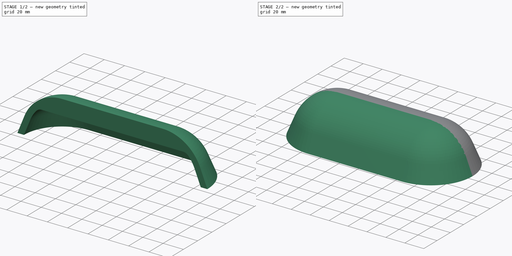
[diagram: build sequence overview — one tinted view per stage of 2, left to right]
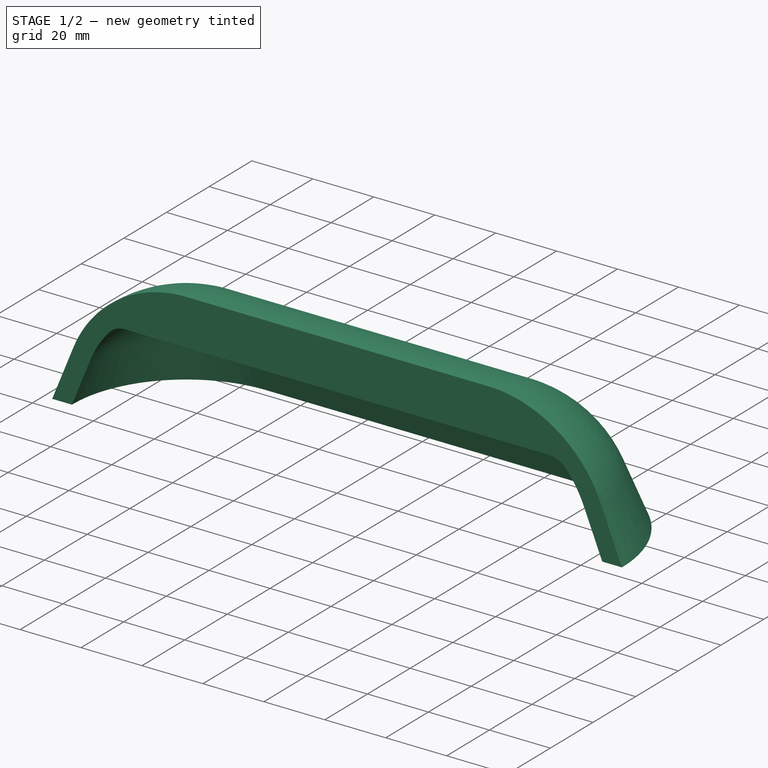
[diagram: stage 1 of 2 — iso view after this stage's code; geometry added in this stage tinted green]
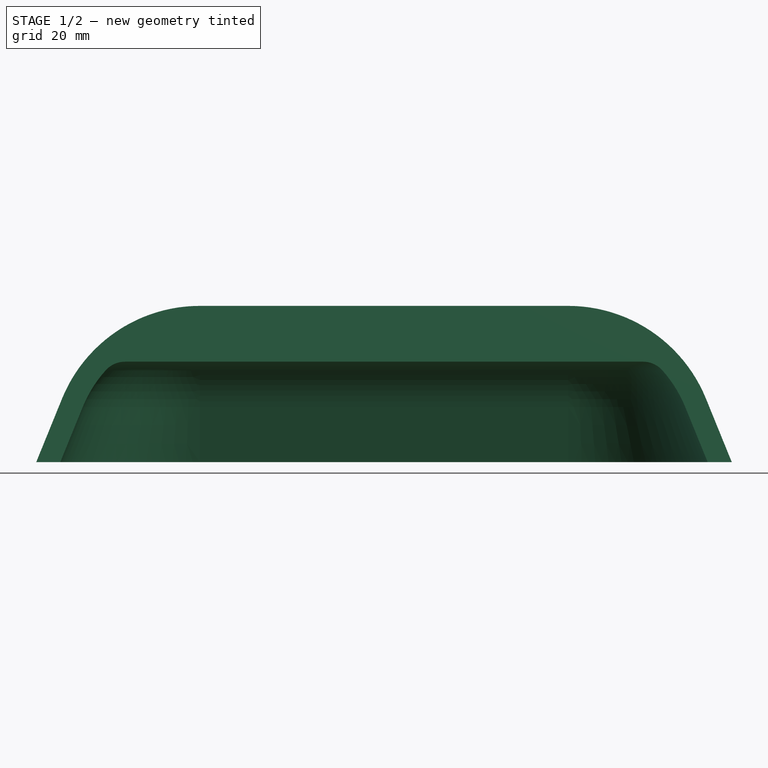
[diagram: stage 1 of 2 — front view after this stage's code; geometry added in this stage tinted green]
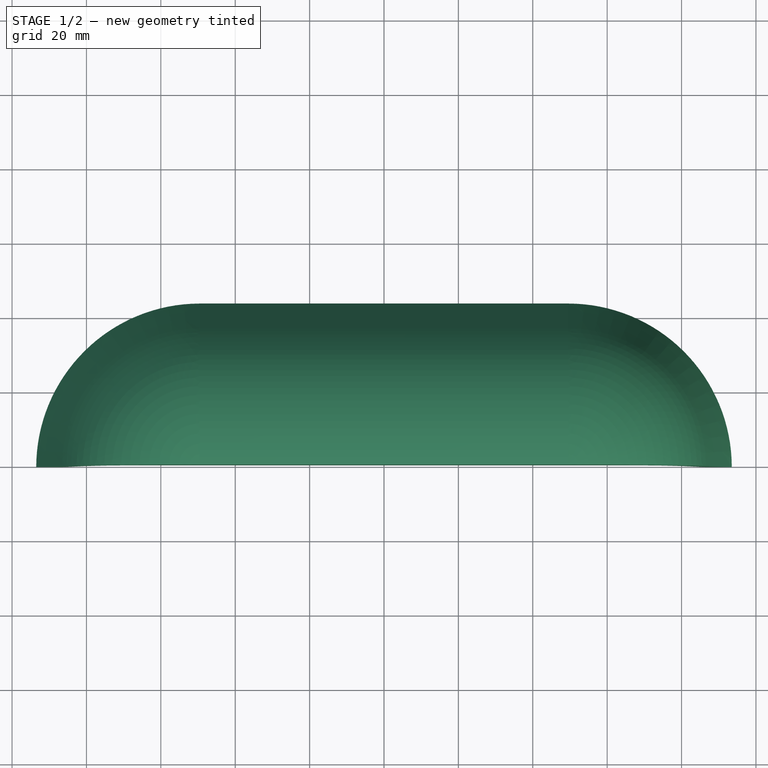
[diagram: stage 1 of 2 — top view after this stage's code; geometry added in this stage tinted green]
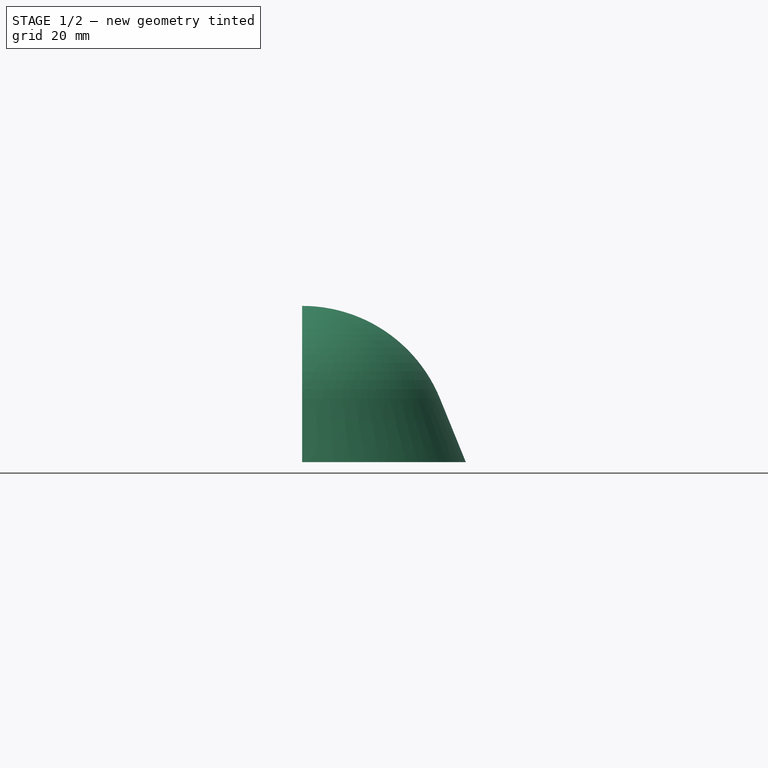
[diagram: stage 1 of 2 — right view after this stage's code; geometry added in this stage tinted green]
FCSTD DOCUMENT  (FreeCAD 1.1R42721 (Git))
Label: 24-SPO-35-LIGHT_CAP
License: Creative Commons Attribution-NonCommercial-ShareAlike 4.0
LicenseURL: https://creativecommons.org/licenses/by-nc-sa/4.0/
objects: Sketcher::SketchObject×2, App::Point×1, PartDesign::AdditivePipe×1, PartDesign::Mirrored×1, PartDesign::Body×1, App::TextDocument×1
note: 10 computed .brp shape members not serialized (recipe doc carries the construction recipe); baked Part::Feature solids carry a one-line shape summary decoded from their .brp

FEATURE [App::Point] Origin001
  Role = Origin
FEATURE [Sketcher::SketchObject] Sketch  label="Path"
  ArcFitTolerance = 1e-06
  AttachmentSupport = -> [Origin]
  ExternalTypes = [0]
  FullyConstrained = true
  MakeInternals = false
  MapMode = 5
  sketch-geometry (5):
    g0: ArcOfCircle CenterX=-49.5 CenterY=0 CenterZ=0 NormalX=0 NormalY=0 NormalZ=1 AngleXU=0 Radius=44 StartAngle=1.5708 EndAngle=3.14159
    g1: LineSegment StartX=-49.5 StartY=44 StartZ=0 EndX=49.5 EndY=44 EndZ=0
    g2: GeomPoint X=-93.5 Y=5.4e-15 Z=0
    g3: GeomPoint X=93.5 Y=0 Z=0
    g4: ArcOfCircle CenterX=49.5 CenterY=0 CenterZ=0 NormalX=0 NormalY=0 NormalZ=1 AngleXU=0 Radius=44 StartAngle=0 EndAngle=1.5708
  constraints (11):
    c: Tangent(g0,g1) = 1.5708
    c: PointOnObject(g0,g-1)
    c: Symmetric(g0,g4,g-2)
    c: PointOnObject(g3,g-1)
    c: PointOnObject(g2,g-1)
    c: DistanceX(g2,g3) = 187
    c: Coincident(g0,g2)
    c: Coincident(g4,g3)
    c: Tangent(g4,g1) = 1.5708
    c: Horizontal(g1)
    c: DistanceY(g-1,g1) = 44
FEATURE [Sketcher::SketchObject] Sketch001  label="Profile"
  ArcFitTolerance = 1e-06
  AttachmentSupport = -> [Origin]
  ExternalTypes = [0]
  FullyConstrained = true
  MakeInternals = false
  MapMode = 5
  Placement = pos=(0,0,0) rot=(0.57735,0.57735,0.57735;2.0944rad)
  sketch-geometry (10):
    g0: ArcOfCircle CenterX=0 CenterY=2 CenterZ=0 NormalX=0 NormalY=0 NormalZ=1 AngleXU=0 Radius=40 StartAngle=0.386522 EndAngle=1.5708
    g1: LineSegment StartX=37.049 StartY=17.0788 StartZ=0 EndX=44 EndY=0 EndZ=0
    g2: GeomPoint [constr] X=0 Y=42 Z=0
    g3: LineSegment StartX=0 StartY=27 StartZ=0 EndX=20.1246 EndY=27 EndZ=0
    g4: ArcOfCircle CenterX=20.1246 CenterY=20 CenterZ=0 NormalX=0 NormalY=0 NormalZ=1 AngleXU=0 Radius=7 StartAngle=0.729728 EndAngle=1.5708
    g5: LineSegment StartX=31.4917 StartY=14.8169 StartZ=0 EndX=37.5221 EndY=0 EndZ=0
    g6: LineSegment StartX=37.5221 StartY=0 StartZ=0 EndX=44 EndY=0 EndZ=0
    g7: LineSegment StartX=37.5221 StartY=0 StartZ=0 EndX=44 EndY=0 EndZ=0
    g8: LineSegment StartX=2.4e-15 StartY=42 StartZ=0 EndX=2.4e-15 EndY=27 EndZ=0
    g9: ArcOfCircle CenterX=0 CenterY=2 CenterZ=0 NormalX=0 NormalY=0 NormalZ=1 AngleXU=0 Radius=34 StartAngle=0.386522 EndAngle=0.729728
  constraints (28):
    c: Tangent(g0,g1) = 1.5708
    c: PointOnObject(g0,g-2)
    c: Coincident(g7,g1)
    c: PointOnObject(g2,g-2)
    c: DistanceY(g-1,g2) = 42
    c: Tangent(g3,g4) = 1.5708
    c: Coincident(g6,g5)
    c: Coincident(g6,g1)
    c: Parallel(g1,g5)
    c: Distance(g0,g5) = 6
    c: Radius(g4) = 7
    c: Coincident(g5,g7)
    c: Horizontal(g6)
    c: Radius(g0) = 40
    c: PointOnObject(g2,g0)
    c: Coincident(g0,g8)
    c: Horizontal(g3)
    c: Distance(g2,g3) = 15
    c: PointOnObject(g3,g8)
    c: Horizontal(g1,g-1)
    c: DistanceX(g-1,g1) = 44
    c: Vertical(g8)
    c: Horizontal(g3,g8)
    c: PointOnObject(g3,g-2)
    c: Coincident(g9,g0)
    c: Coincident(g9,g4)
    c: Tangent(g9,g4,g4) = -1.5708
    c: Tangent(g9,g5) = 1.5708
FEATURE [PartDesign::AdditivePipe] AdditivePipe
  AuxiliaryCurvilinear = true
  AuxiliarySpineTangent = false
  Binormal = (0,0,0)
  Mode = 0
  Profile = -> Sketch001
  Refine = true
  Spine = -> Sketch [Edge2,Edge1,Edge3]
  SpineTangent = false
  Suppressed = false
  Transformation = 0
  Transition = 0
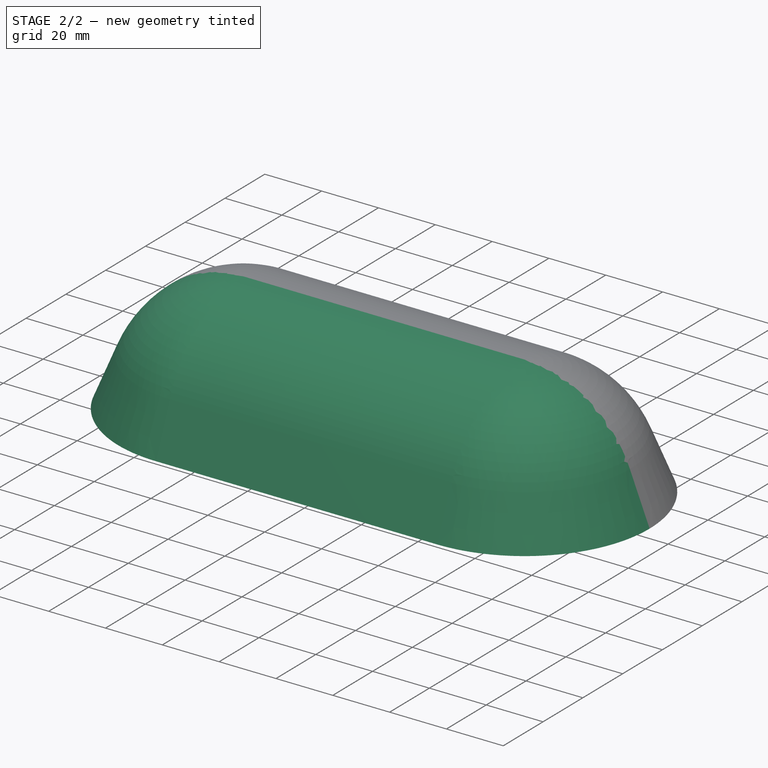
[diagram: stage 2 of 2 — iso view after this stage's code; geometry added in this stage tinted green]
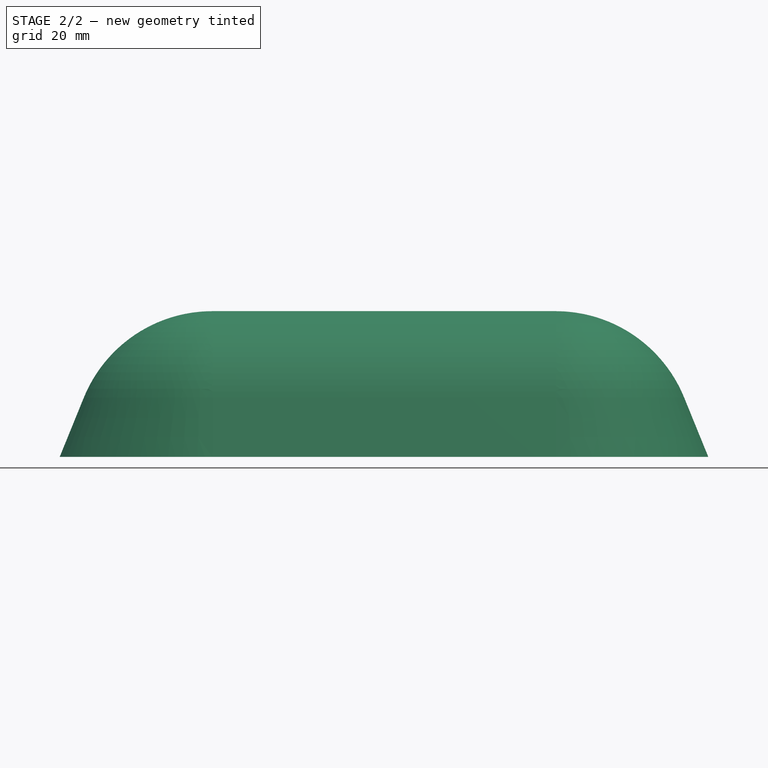
[diagram: stage 2 of 2 — front view after this stage's code; geometry added in this stage tinted green]
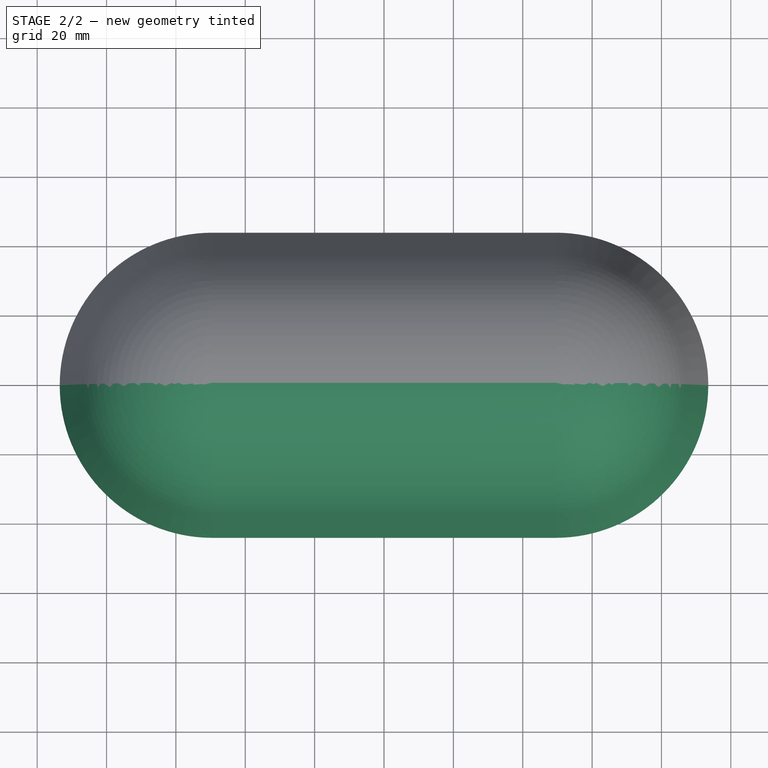
[diagram: stage 2 of 2 — top view after this stage's code; geometry added in this stage tinted green]
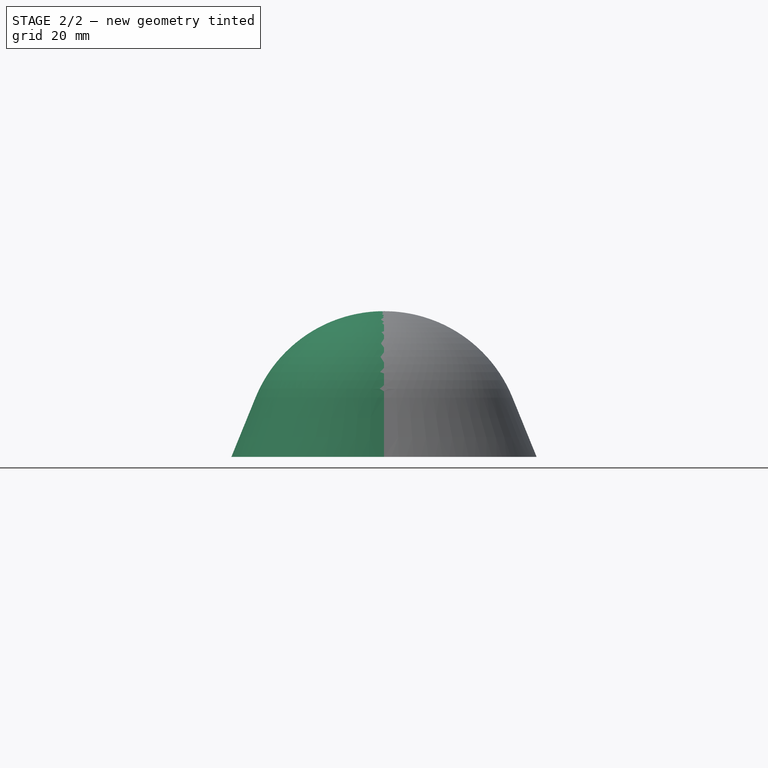
[diagram: stage 2 of 2 — right view after this stage's code; geometry added in this stage tinted green]
FEATURE [PartDesign::Mirrored] Mirrored
  BaseFeature = -> AdditivePipe
  MirrorPlane = -> XZ_Plane
  Refine = true
  Suppressed = false
  TransformMode = 1
FEATURE [PartDesign::Body] Body
  AllowCompound = true
  Group = -> [Sketch,Sketch001,AdditivePipe,Mirrored]
  Origin = -> Origin
  Tip = -> Mirrored
FEATURE [App::TextDocument] Text_document  label="README"
  Text = ABS 1020 kg/m3\n\n168.9g OK
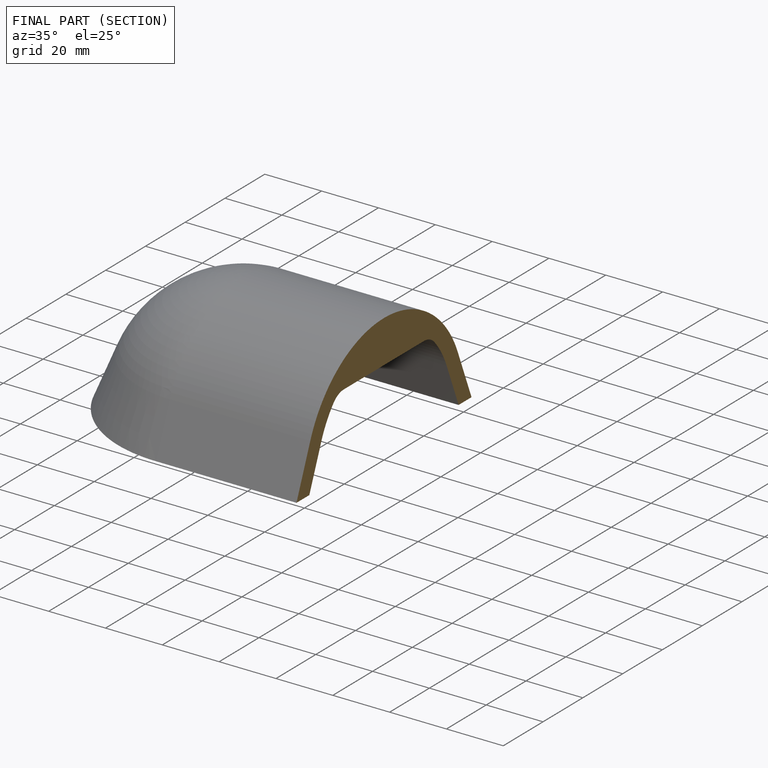
[diagram: finished part — half-section view (interior)]
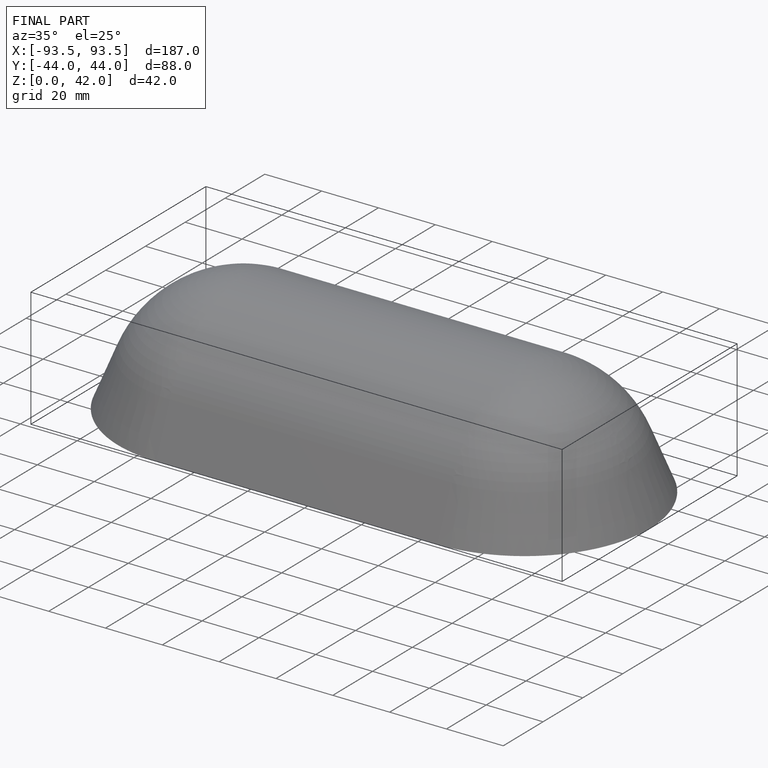
[diagram: finished part — iso view with bounding-box wireframe]
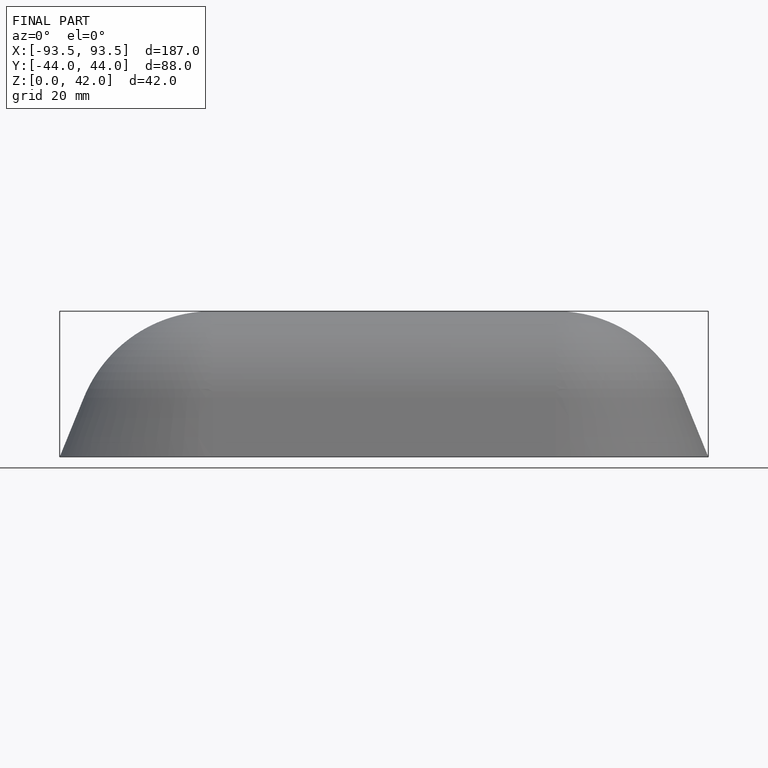
[diagram: finished part — front view with bounding-box wireframe]
